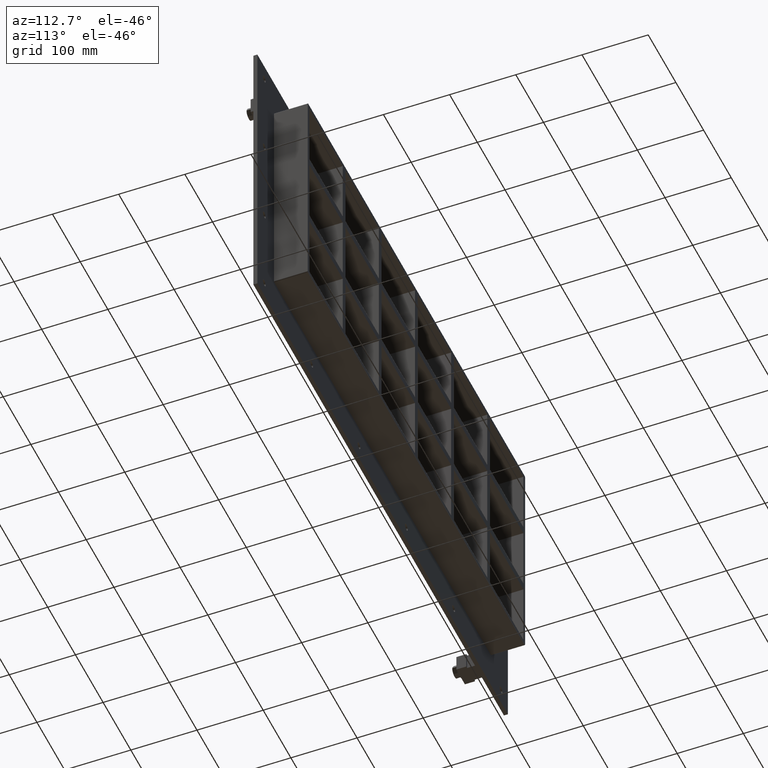
[diagram: clean part render]
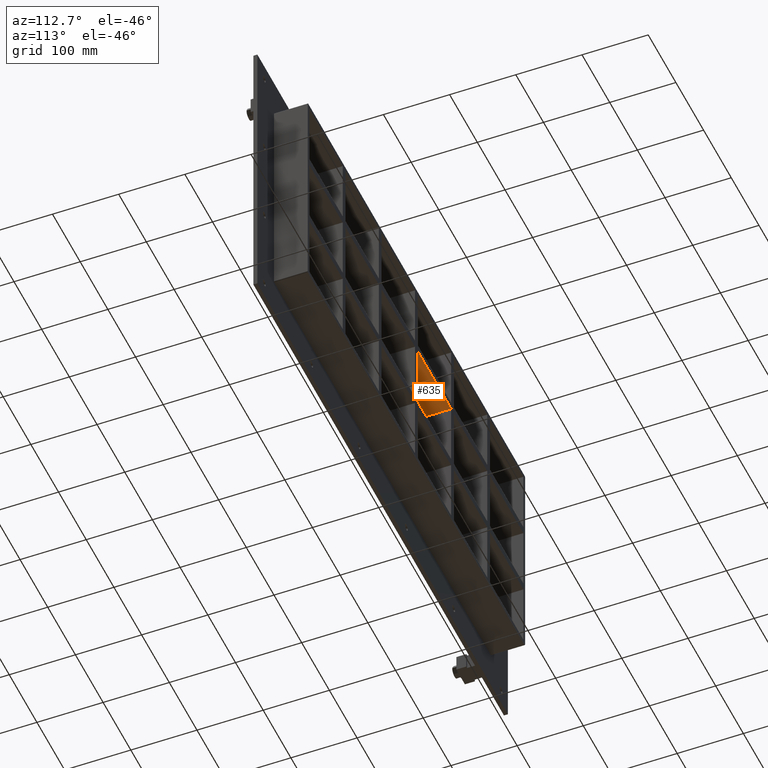
[diagram: same view with one face highlighted and labeled with its STEP entity id]
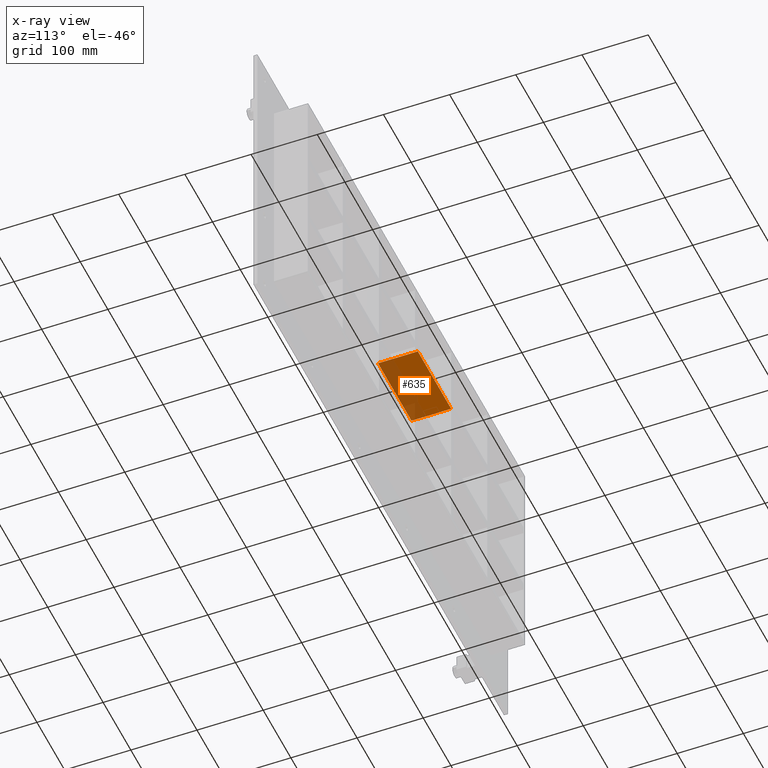
[diagram: x-ray of the same camera — body ghosted, the highlighted face saturated]
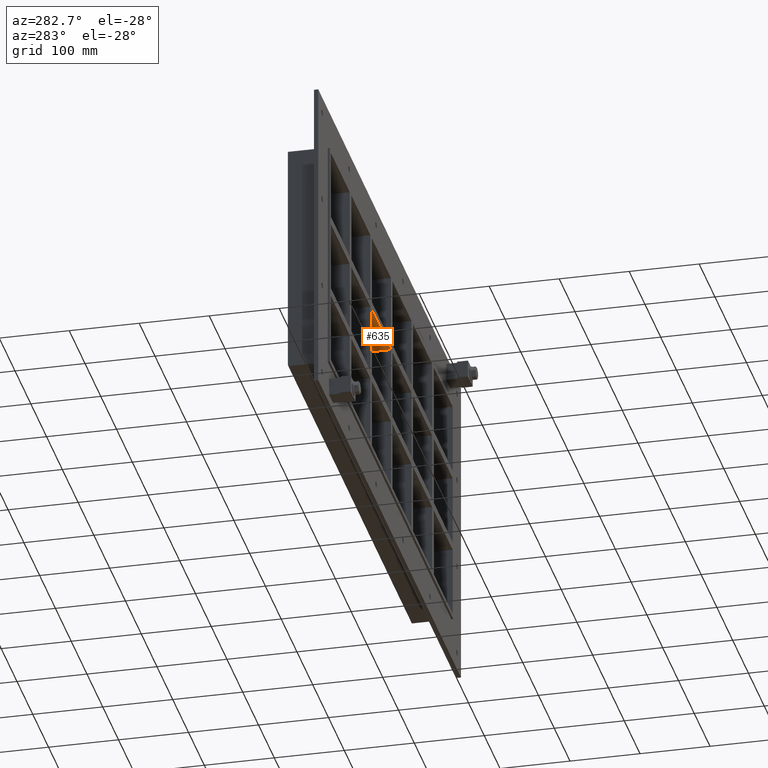
[diagram: same view with one face highlighted and labeled with its STEP entity id]
A machine part, auxiliary view. The second image highlights one B-rep face of the part: STEP entity #635.
The next image is the same camera in x-ray: the body ghosted, the highlighted face saturated — about 40% of this face is hidden behind the body in this view.
A second angle (auxiliary view) of the same face is appended — the face is thin or edge-on in the first view.
In plain terms, the highlighted planar face has unit normal (0, 0, -1).
Its self-contained STEP definition (entity closure, byte-faithful):
#596=CARTESIAN_POINT('',(386.49999999999636,-3.0,50.499999999989129));
#597=DIRECTION('',(0.0,0.0,-1.0));
#598=DIRECTION('',(-1.0,0.0,0.0));
#599=AXIS2_PLACEMENT_3D('',#596,#597,#598);
#600=PLANE('',#599);
#601=CARTESIAN_POINT('',(-5.000000000000142,-3.0,50.49999999998888));
#602=VERTEX_POINT('',#601);
#603=CARTESIAN_POINT('',(-5.000000000000142,57.0,50.49999999998888));
#604=VERTEX_POINT('',#603);
#605=CARTESIAN_POINT('',(-5.000000000000142,-3.0,50.499999999988887));
#606=DIRECTION('',(0.0,1.0,0.0));
#607=VECTOR('',#606,60.0);
#608=LINE('',#605,#607);
#609=EDGE_CURVE('',#602,#604,#608,.T.);
#610=ORIENTED_EDGE('',*,*,#609,.F.);
#611=CARTESIAN_POINT('',(-125.50000000000367,-3.0,50.499999999988809));
#612=VERTEX_POINT('',#611);
#613=CARTESIAN_POINT('',(-5.000000000000114,-3.0,50.49999999998888));
#614=DIRECTION('',(-1.0,0.0,0.0));
#615=VECTOR('',#614,120.50000000000352);
#616=LINE('',#613,#615);
#617=EDGE_CURVE('',#602,#612,#616,.T.);
#618=ORIENTED_EDGE('',*,*,#617,.T.);
#619=CARTESIAN_POINT('',(-125.50000000000367,57.0,50.499999999988809));
#620=VERTEX_POINT('',#619);
#621=CARTESIAN_POINT('',(-125.50000000000361,57.0,50.499999999988816));
#622=DIRECTION('',(0.0,-1.0,0.0));
#623=VECTOR('',#622,60.0);
#624=LINE('',#621,#623);
#625=EDGE_CURVE('',#620,#612,#624,.T.);
#626=ORIENTED_EDGE('',*,*,#625,.F.);
#627=CARTESIAN_POINT('',(-5.000000000000114,57.0,50.49999999998888));
#628=DIRECTION('',(-1.0,0.0,0.0));
#629=VECTOR('',#628,120.50000000000352);
#630=LINE('',#627,#629);
#631=EDGE_CURVE('',#604,#620,#630,.T.);
#632=ORIENTED_EDGE('',*,*,#631,.F.);
#633=EDGE_LOOP('',(#610,#618,#626,#632));
#634=FACE_OUTER_BOUND('',#633,.T.);
#635=ADVANCED_FACE('',(#634),#600,.T.);